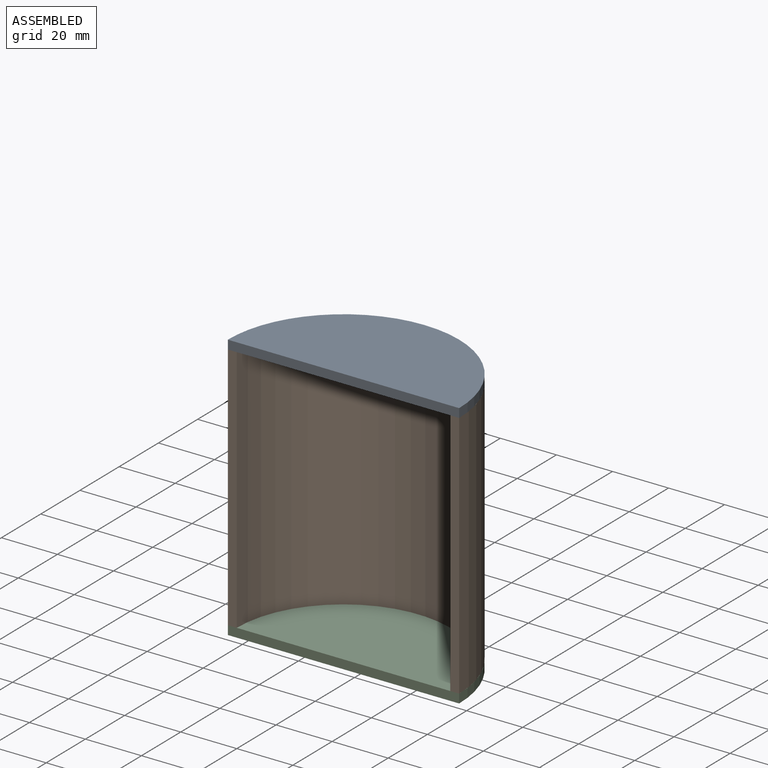
[diagram: assembled view]
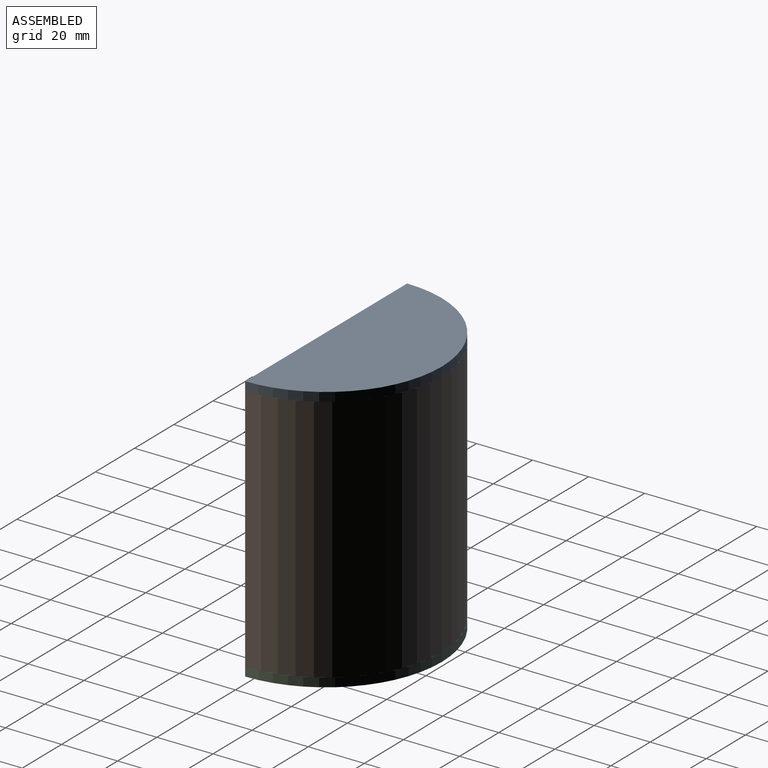
[diagram: assembled view, second angle]
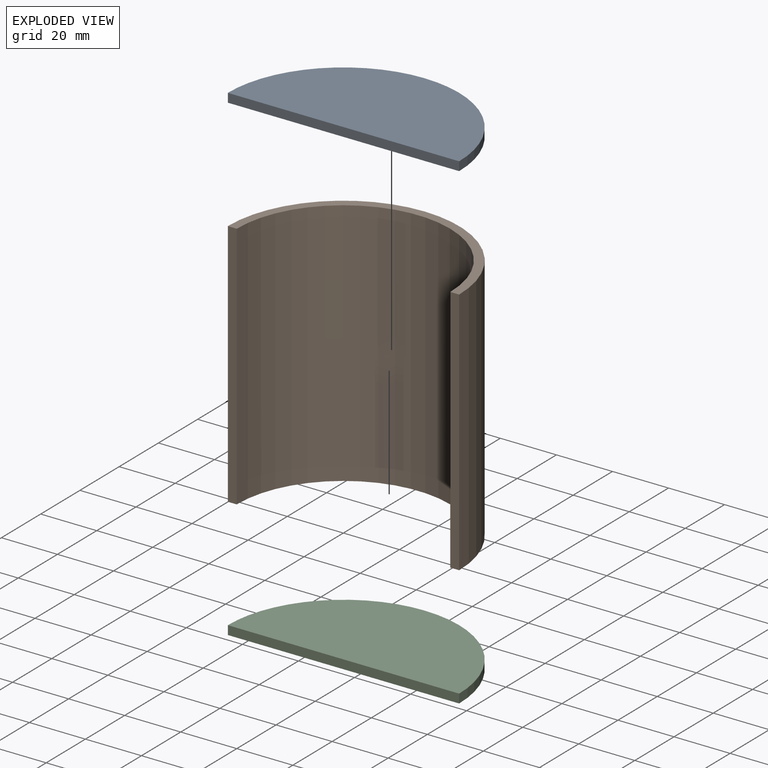
[diagram: exploded view]
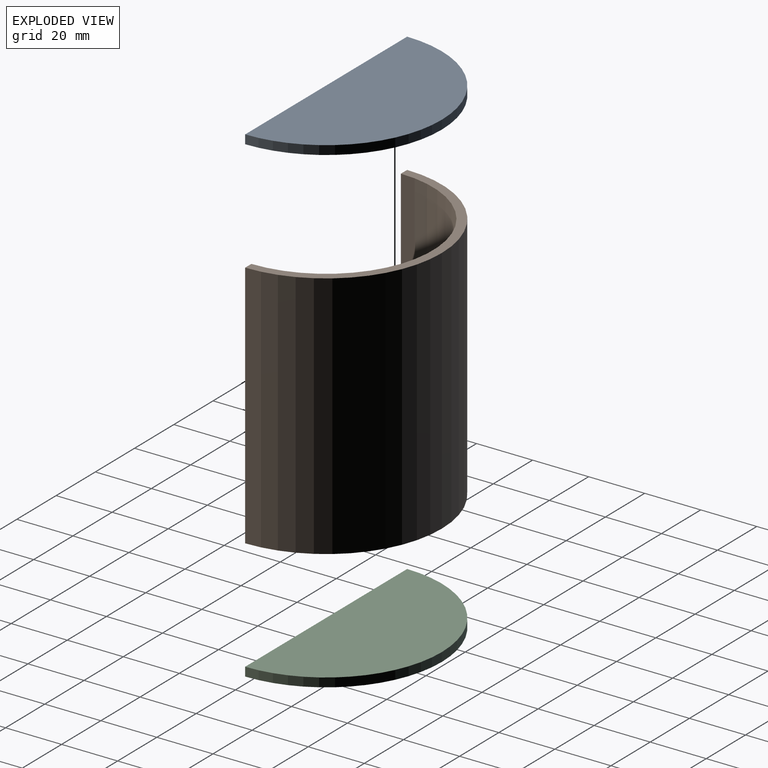
[diagram: exploded view, second angle]
ASSEMBLY  parts=3 mates=2
PART A: 4 faces, bbox 82.6x41.3x3.2 mm
  f0: cylinder r=41.27mm len=82.55mm, axis (0,0,-1), area 411.7mm2, adj f1,f2,f3
  f1: plane 82.55x3.18mm, normal (0,-1,0), area 262.1mm2, adj f0,f2,f3
  f2: plane 82.55x41.28mm, normal (0,0,1), area 2676mm2, adj f0,f1
  f3: plane 82.55x41.28mm, normal (0,0,-1), area 2676mm2, adj f0,f1
PART B: 6 faces, bbox 82.6x41.3x88.9 mm
  f0: plane 88.9x3.18mm, normal (0,-1,0), area 282.3mm2, adj f1,f3,f4,f5
  f1: cylinder r=41.27mm len=88.9mm, axis (0,0,-1), area 11527.6mm2, adj f0,f2,f4,f5
  f2: plane 88.9x3.18mm, normal (0,-1,0), area 282.3mm2, adj f1,f3,f4,f5
  f3: cylinder r=38.1mm len=88.9mm, axis (0,0,-1), area 10640.9mm2, adj f0,f2,f4,f5
  f4: plane 82.55x41.28mm, normal (0,0,1), area 395.9mm2, adj f0,f1,f2,f3
  f5: plane 82.55x41.28mm, normal (0,0,-1), area 395.9mm2, adj f0,f1,f2,f3
PART C: same geometry as A
PLACE A t=(4.7,-12.31,54.45)mm
PLACE B t=(4.7,-12.31,8.42)mm
PLACE C t=(4.7,-12.31,-37.62)mm
MATE fastened C.f0 <-> B.f1  axis (0,0,1) through (4.7,-12.31,-36.03)mm
MATE fastened A.f0 <-> B.f1  axis (0,0,-1) through (4.7,-12.31,52.87)mm
